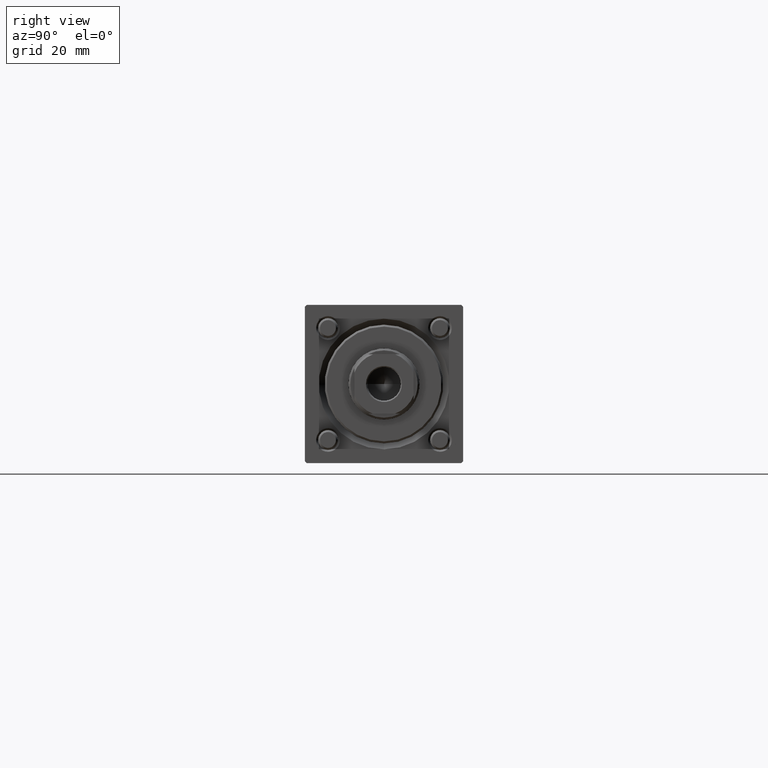
[diagram: clean part render]
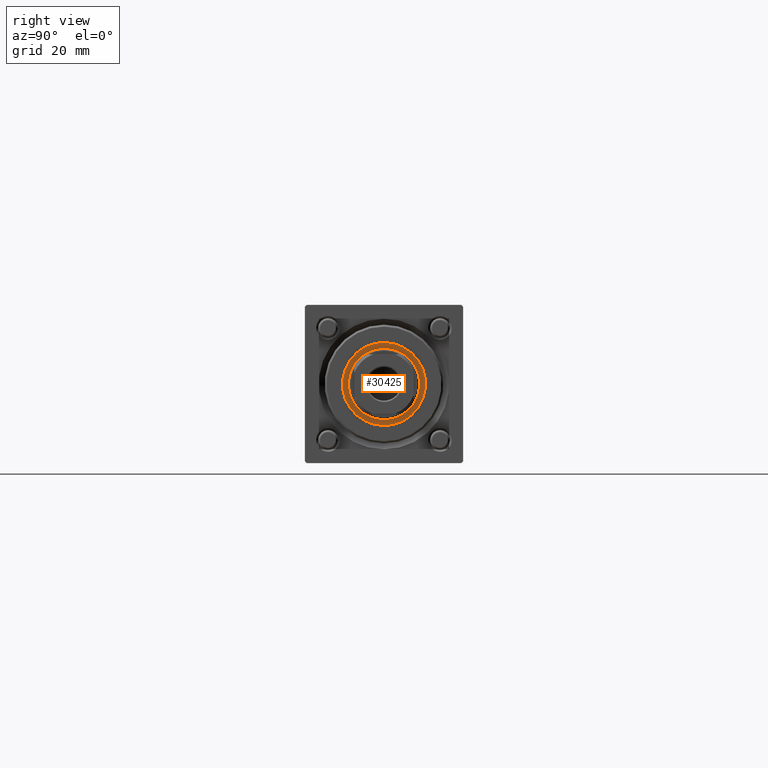
[diagram: same view with one face highlighted and labeled with its STEP entity id]
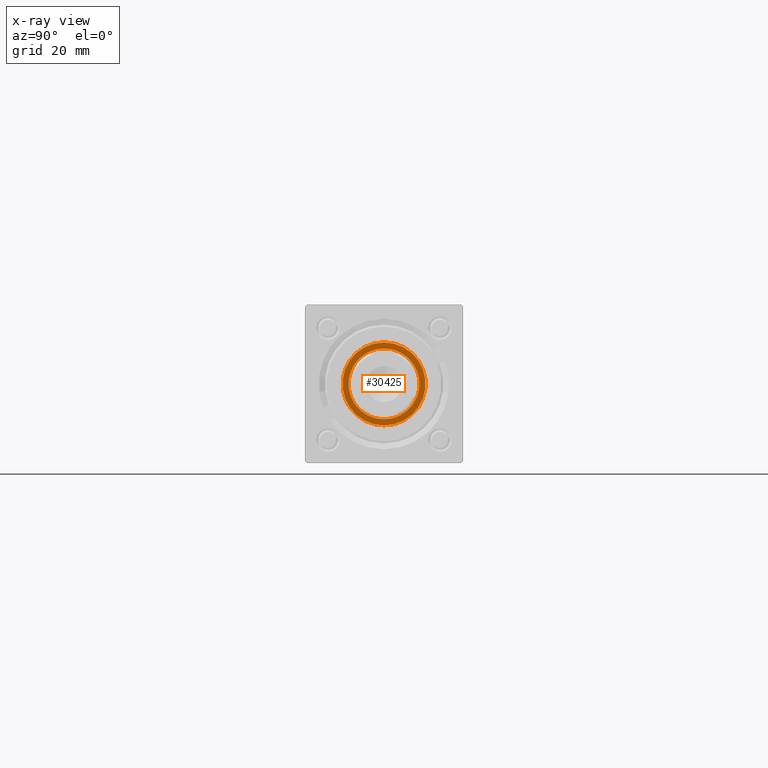
[diagram: x-ray of the same camera — body ghosted, the highlighted face saturated]
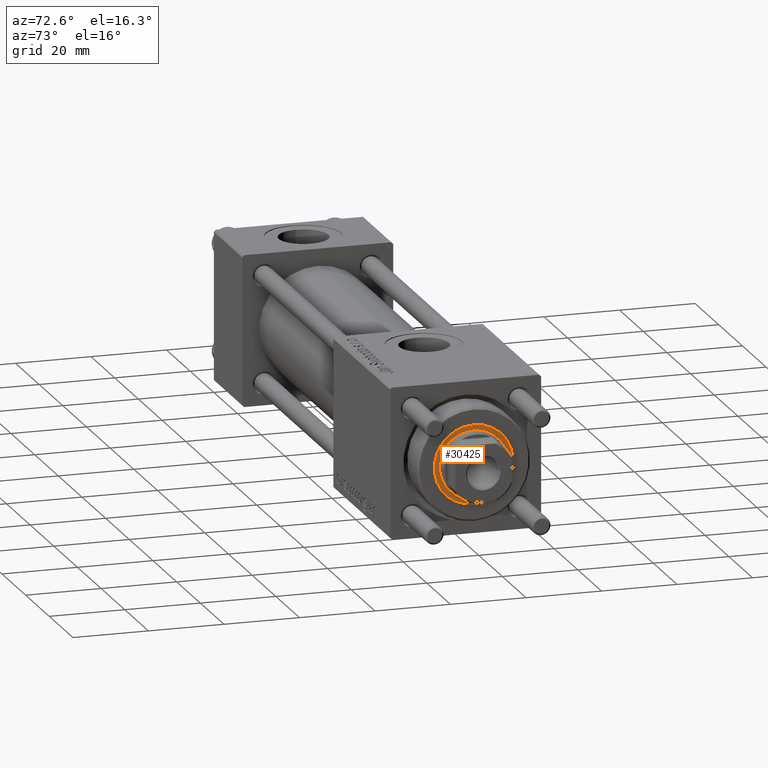
[diagram: same view with one face highlighted and labeled with its STEP entity id]
A machine part, right view. The second image highlights one B-rep face of the part: STEP entity #30425.
The next image is the same camera in x-ray: the body ghosted, the highlighted face saturated — about 0% of this face is hidden behind the body in this view.
A second angle (auxiliary view) of the same face is appended — the face is thin or edge-on in the first view.
In plain terms, the highlighted planar face has unit normal (1, 0, 0).
Its self-contained STEP definition (entity closure, byte-faithful):
#2057 = CIRCLE ( 'NONE', #28628, 10.50000000000000000 ) ;
#6074 = AXIS2_PLACEMENT_3D ( 'NONE', #46852, #20192, #37967 ) ;
#7497 = VERTEX_POINT ( 'NONE', #37114 ) ;
#7572 = CARTESIAN_POINT ( 'NONE',  ( 0.000000000000000000, 0.000000000000000000, 35.20000000000000284 ) ) ;
#8449 = EDGE_LOOP ( 'NONE', ( #31871, #24967 ) ) ;
#8805 = AXIS2_PLACEMENT_3D ( 'NONE', #7572, #12437, #28818 ) ;
#9167 = CARTESIAN_POINT ( 'NONE',  ( -10.50000000000000000, 1.285879139104720831E-15, 35.20000000000000284 ) ) ;
#12437 = DIRECTION ( 'NONE',  ( 0.000000000000000000, 0.000000000000000000, 1.000000000000000000 ) ) ;
#12696 = ORIENTED_EDGE ( 'NONE', *, *, #44654, .T. ) ;
#12908 = DIRECTION ( 'NONE',  ( 0.000000000000000000, 0.000000000000000000, 1.000000000000000000 ) ) ;
#13468 = VERTEX_POINT ( 'NONE', #9167 ) ;
#13886 = DIRECTION ( 'NONE',  ( 1.000000000000000000, 0.000000000000000000, 0.000000000000000000 ) ) ;
#14658 = DIRECTION ( 'NONE',  ( 0.000000000000000000, 0.000000000000000000, 1.000000000000000000 ) ) ;
#17842 = VERTEX_POINT ( 'NONE', #46040 ) ;
#20192 = DIRECTION ( 'NONE',  ( -0.000000000000000000, -0.000000000000000000, -1.000000000000000000 ) ) ;
#21346 = CARTESIAN_POINT ( 'NONE',  ( 0.000000000000000000, 0.000000000000000000, 35.20000000000000284 ) ) ;
#24967 = ORIENTED_EDGE ( 'NONE', *, *, #46376, .T. ) ;
#27547 = DIRECTION ( 'NONE',  ( 1.000000000000000000, 0.000000000000000000, 0.000000000000000000 ) ) ;
#27939 = DIRECTION ( 'NONE',  ( -0.000000000000000000, -0.000000000000000000, -1.000000000000000000 ) ) ;
#28628 = AXIS2_PLACEMENT_3D ( 'NONE', #34706, #12908, #29562 ) ;
#28757 = CIRCLE ( 'NONE', #45181, 10.50000000000000000 ) ;
#28818 = DIRECTION ( 'NONE',  ( 1.000000000000000000, 0.000000000000000000, -0.000000000000000000 ) ) ;
#29562 = DIRECTION ( 'NONE',  ( 1.000000000000000000, 0.000000000000000000, 0.000000000000000000 ) ) ;
#29649 = FACE_OUTER_BOUND ( 'NONE', #8449, .T. ) ;
#30425 = ADVANCED_FACE ( 'NONE', ( #29649, #38251 ), #55746, .T. ) ;
#30469 = EDGE_CURVE ( 'NONE', #17842, #46702, #37172, .T. ) ;
#31871 = ORIENTED_EDGE ( 'NONE', *, *, #49736, .T. ) ;
#34706 = CARTESIAN_POINT ( 'NONE',  ( 0.000000000000000000, 0.000000000000000000, 35.20000000000000284 ) ) ;
#37114 = CARTESIAN_POINT ( 'NONE',  ( 10.50000000000000000, 0.000000000000000000, 35.20000000000000284 ) ) ;
#37172 = CIRCLE ( 'NONE', #6074, 9.000000000000000000 ) ;
#37967 = DIRECTION ( 'NONE',  ( 1.000000000000000000, 0.000000000000000000, 0.000000000000000000 ) ) ;
#38251 = FACE_BOUND ( 'NONE', #42538, .T. ) ;
#39652 = CIRCLE ( 'NONE', #53425, 9.000000000000000000 ) ;
#41312 = ORIENTED_EDGE ( 'NONE', *, *, #30469, .T. ) ;
#42538 = EDGE_LOOP ( 'NONE', ( #41312, #12696 ) ) ;
#44654 = EDGE_CURVE ( 'NONE', #46702, #17842, #39652, .T. ) ;
#44847 = CARTESIAN_POINT ( 'NONE',  ( 0.000000000000000000, 0.000000000000000000, 35.20000000000000284 ) ) ;
#45181 = AXIS2_PLACEMENT_3D ( 'NONE', #21346, #14658, #27547 ) ;
#46040 = CARTESIAN_POINT ( 'NONE',  ( 9.000000000000000000, 0.000000000000000000, 35.20000000000000284 ) ) ;
#46376 = EDGE_CURVE ( 'NONE', #13468, #7497, #2057, .T. ) ;
#46702 = VERTEX_POINT ( 'NONE', #49744 ) ;
#46852 = CARTESIAN_POINT ( 'NONE',  ( 0.000000000000000000, 0.000000000000000000, 35.20000000000000284 ) ) ;
#49736 = EDGE_CURVE ( 'NONE', #7497, #13468, #28757, .T. ) ;
#49744 = CARTESIAN_POINT ( 'NONE',  ( -9.000000000000000000, 1.102182119232617714E-15, 35.20000000000000284 ) ) ;
#53425 = AXIS2_PLACEMENT_3D ( 'NONE', #44847, #27939, #13886 ) ;
#55746 = PLANE ( 'NONE',  #8805 ) ;